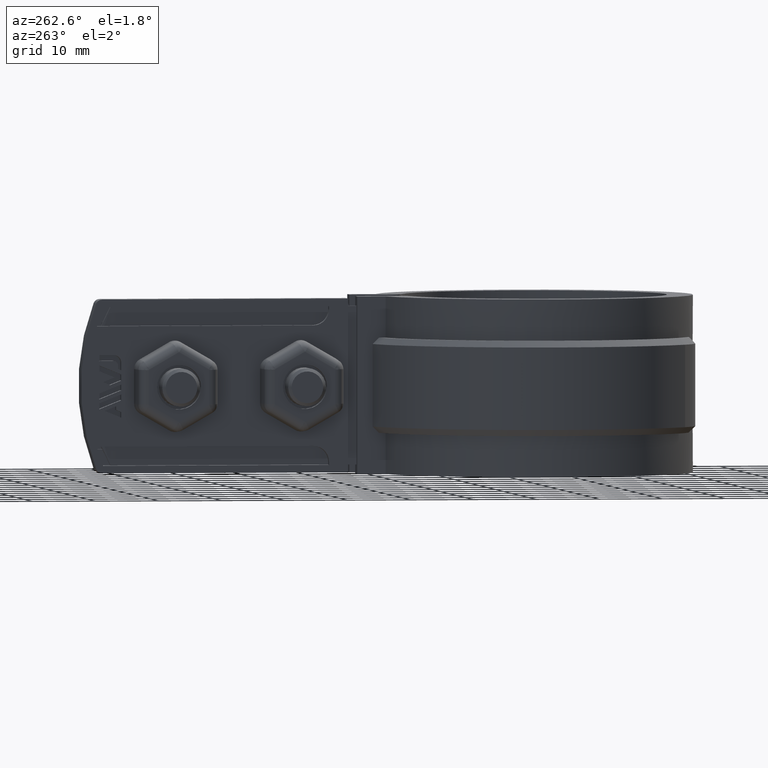
[diagram: clean part render]
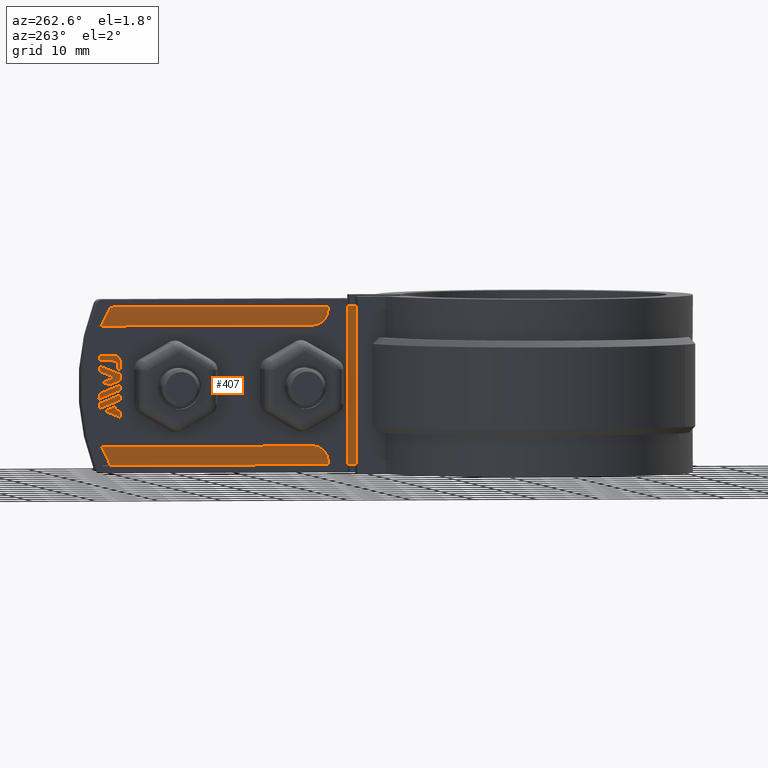
[diagram: same view with one face highlighted and labeled with its STEP entity id]
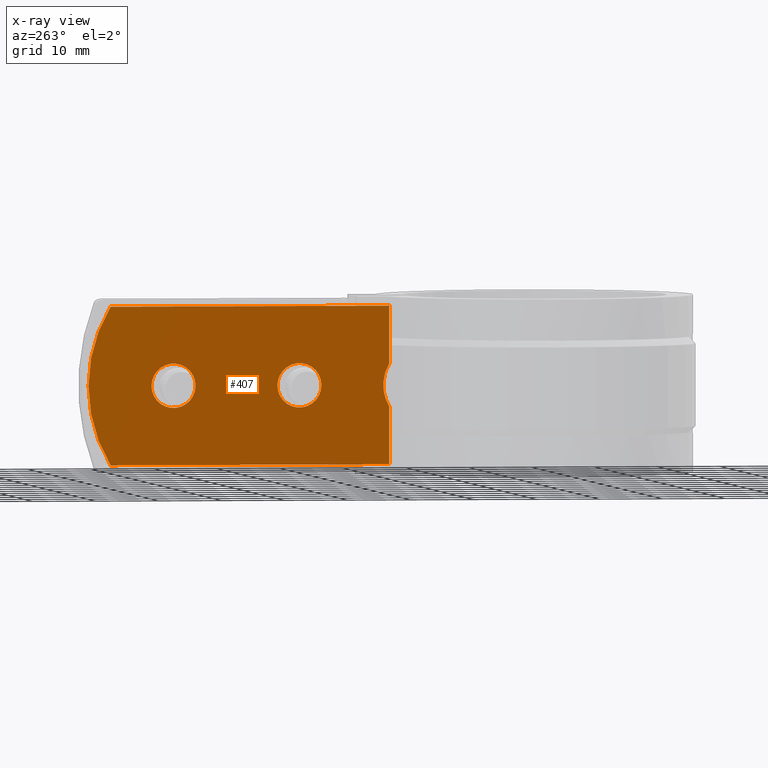
[diagram: x-ray of the same camera — body ghosted, the highlighted face saturated]
A machine part, auxiliary view. The second image highlights one B-rep face of the part: STEP entity #407.
The next image is the same camera in x-ray: the body ghosted, the highlighted face saturated — about 0% of this face is hidden behind the body in this view.
In plain terms, the highlighted planar face has unit normal (1, -0, 0).
Its self-contained STEP definition (entity closure, byte-faithful):
#407 = ADVANCED_FACE( '', ( #804, #805, #806 ), #807, .F. );
#804 = FACE_BOUND( '', #1736, .T. );
#805 = FACE_BOUND( '', #1737, .T. );
#806 = FACE_OUTER_BOUND( '', #1738, .T. );
#807 = PLANE( '', #1739 );
#1736 = EDGE_LOOP( '', ( #3558 ) );
#1737 = EDGE_LOOP( '', ( #3559 ) );
#1738 = EDGE_LOOP( '', ( #3560, #3561, #3562, #3563, #3564, #3565 ) );
#1739 = AXIS2_PLACEMENT_3D( '', #3566, #3567, #3568 );
#3558 = ORIENTED_EDGE( '', *, *, #6482, .F. );
#3559 = ORIENTED_EDGE( '', *, *, #6477, .F. );
#3560 = ORIENTED_EDGE( '', *, *, #6391, .F. );
#3561 = ORIENTED_EDGE( '', *, *, #6450, .F. );
#3562 = ORIENTED_EDGE( '', *, *, #6365, .F. );
#3563 = ORIENTED_EDGE( '', *, *, #6473, .F. );
#3564 = ORIENTED_EDGE( '', *, *, #6466, .T. );
#3565 = ORIENTED_EDGE( '', *, *, #6487, .F. );
#3566 = CARTESIAN_POINT( '', ( -5.10000000000000, 71.3954076850486, 0.000000000000000 ) );
#3567 = DIRECTION( '', ( 1.00000000000000, -6.12303176911189E-017, 0.000000000000000 ) );
#3568 = DIRECTION( '', ( -6.12303176911189E-017, -1.00000000000000, 0.000000000000000 ) );
#6365 = EDGE_CURVE( '', #7304, #7307, #7308, .T. );
#6391 = EDGE_CURVE( '', #7352, #7354, #7355, .T. );
#6450 = EDGE_CURVE( '', #7307, #7352, #7454, .T. );
#6466 = EDGE_CURVE( '', #7476, #7474, #7477, .T. );
#6473 = EDGE_CURVE( '', #7476, #7304, #7487, .T. );
#6477 = EDGE_CURVE( '', #7492, #7492, #7493, .F. );
#6482 = EDGE_CURVE( '', #7501, #7501, #7502, .F. );
#6487 = EDGE_CURVE( '', #7354, #7474, #7507, .T. );
#7304 = VERTEX_POINT( '', #8983 );
#7307 = VERTEX_POINT( '', #8987 );
#7308 = LINE( '', #8988, #8989 );
#7352 = VERTEX_POINT( '', #9205 );
#7354 = VERTEX_POINT( '', #9220 );
#7355 = B_SPLINE_CURVE_WITH_KNOTS( '', 3, ( #9221, #9222, #9223, #9224, #9225, #9226, #9227, #9228, #9229, #9230, #9231, #9232, #9233, #9234, #9235, #9236 ), .UNSPECIFIED., .F., .F., ( 4, 2, 2, 2, 2, 2, 2, 4 ), ( 6.25463444138550E-018, 0.00178226757328872, 0.00267340135993308, 0.00356453514657744, 0.00445566893322180, 0.00534680271986616, 0.00623793650651052, 0.00712907029315488 ), .UNSPECIFIED. );
#7454 = LINE( '', #9810, #9811 );
#7474 = VERTEX_POINT( '', #9861 );
#7476 = VERTEX_POINT( '', #9863 );
#7477 = LINE( '', #9864, #9865 );
#7487 = CIRCLE( '', #9878, 24.0000000000000 );
#7492 = VERTEX_POINT( '', #9884 );
#7493 = CIRCLE( '', #9885, 3.50000000000000 );
#7501 = VERTEX_POINT( '', #9894 );
#7502 = CIRCLE( '', #9895, 3.50000000000000 );
#7507 = LINE( '', #9904, #9905 );
#8983 = CARTESIAN_POINT( '', ( -5.10000000000002, 67.8832089335965, 4.86577166603331E-031 ) );
#8987 = CARTESIAN_POINT( '', ( -5.10000000000000, 23.6220236220354, 0.000000000000000 ) );
#8988 = CARTESIAN_POINT( '', ( -5.10000000000000, 71.3954076850486, 0.000000000000000 ) );
#8989 = VECTOR( '', #12686, 1000.00000000000 );
#9205 = CARTESIAN_POINT( '', ( -5.10000000000000, 23.6220236220354, -9.09103393485072 ) );
#9220 = CARTESIAN_POINT( '', ( -5.10000000000000, 23.6220236220354, -15.9089660651493 ) );
#9221 = CARTESIAN_POINT( '', ( -5.10000000000000, 23.6220236220354, -9.09103393485072 ) );
#9222 = CARTESIAN_POINT( '', ( -5.10000000000000, 23.9351079892514, -9.60609027551422 ) );
#9223 = CARTESIAN_POINT( '', ( -5.10000000000000, 24.1701184720438, -10.1520119490988 ) );
#9224 = CARTESIAN_POINT( '', ( -5.10000000000000, 24.4118846740219, -11.0146776130757 ) );
#9225 = CARTESIAN_POINT( '', ( -5.10000000000000, 24.4737099916134, -11.3112838608145 ) );
#9226 = CARTESIAN_POINT( '', ( -5.10000000000000, 24.5554598301933, -11.9025011125937 ) );
#9227 = CARTESIAN_POINT( '', ( -5.09999999999999, 24.5760977391014, -12.1989037411198 ) );
#9228 = CARTESIAN_POINT( '', ( -5.09999999999999, 24.5764569778627, -12.7933143672970 ) );
#9229 = CARTESIAN_POINT( '', ( -5.10000000000000, 24.5560940052507, -13.0918979562416 ) );
#9230 = CARTESIAN_POINT( '', ( -5.10000000000000, 24.4739034540452, -13.6883214232927 ) );
#9231 = CARTESIAN_POINT( '', ( -5.10000000000001, 24.4129522583653, -13.9804437215128 ) );
#9232 = CARTESIAN_POINT( '', ( -5.10000000000001, 24.2530720638696, -14.5530412437133 ) );
#9233 = CARTESIAN_POINT( '', ( -5.10000000000000, 24.1541383949331, -14.8335150354559 ) );
#9234 = CARTESIAN_POINT( '', ( -5.10000000000000, 23.9171957299976, -15.3824789548621 ) );
#9235 = CARTESIAN_POINT( '', ( -5.09999999999999, 23.7785633939905, -15.6514418622374 ) );
#9236 = CARTESIAN_POINT( '', ( -5.09999999999999, 23.6220236220354, -15.9089660651493 ) );
#9810 = CARTESIAN_POINT( '', ( -5.10000000000000, 23.6220236220354, 0.000000000000000 ) );
#9811 = VECTOR( '', #12763, 1000.00000000000 );
#9861 = CARTESIAN_POINT( '', ( -5.10000000000000, 23.6220236220354, -25.0000000000000 ) );
#9863 = CARTESIAN_POINT( '', ( -5.10000000000002, 67.8832089335965, -25.0000000000000 ) );
#9864 = CARTESIAN_POINT( '', ( -5.10000000000000, 71.3954076850486, -25.0000000000000 ) );
#9865 = VECTOR( '', #12788, 1000.00000000000 );
#9878 = AXIS2_PLACEMENT_3D( '', #12801, #12802, #12803 );
#9884 = CARTESIAN_POINT( '', ( -5.09999999999999, 41.3954076850486, -12.5000000000000 ) );
#9885 = AXIS2_PLACEMENT_3D( '', #12811, #12812, #12813 );
#9894 = CARTESIAN_POINT( '', ( -5.09999999999999, 61.3954076850486, -12.5000000000000 ) );
#9895 = AXIS2_PLACEMENT_3D( '', #12824, #12825, #12826 );
#9904 = CARTESIAN_POINT( '', ( -5.10000000000000, 23.6220236220354, 0.000000000000000 ) );
#9905 = VECTOR( '', #12831, 1000.00000000000 );
#12686 = DIRECTION( '', ( -6.12303176911189E-017, -1.00000000000000, 0.000000000000000 ) );
#12763 = DIRECTION( '', ( 0.000000000000000, 0.000000000000000, -1.00000000000000 ) );
#12788 = DIRECTION( '', ( -6.12303176911189E-017, -1.00000000000000, 0.000000000000000 ) );
#12801 = CARTESIAN_POINT( '', ( -5.09999999999999, 47.3954076850486, -12.5000000000000 ) );
#12802 = DIRECTION( '', ( 1.00000000000000, -6.12303176911189E-017, 0.000000000000000 ) );
#12803 = DIRECTION( '', ( 6.12303176911189E-017, 1.00000000000000, 0.000000000000000 ) );
#12811 = CARTESIAN_POINT( '', ( -5.09999999999999, 37.8954076850486, -12.5000000000000 ) );
#12812 = DIRECTION( '', ( 1.00000000000000, -6.12303176911189E-017, 0.000000000000000 ) );
#12813 = DIRECTION( '', ( 6.12303176911189E-017, 1.00000000000000, 0.000000000000000 ) );
#12824 = CARTESIAN_POINT( '', ( -5.09999999999999, 57.8954076850486, -12.5000000000000 ) );
#12825 = DIRECTION( '', ( 1.00000000000000, -6.12303176911189E-017, 0.000000000000000 ) );
#12826 = DIRECTION( '', ( 6.12303176911189E-017, 1.00000000000000, 0.000000000000000 ) );
#12831 = DIRECTION( '', ( 0.000000000000000, 0.000000000000000, -1.00000000000000 ) );